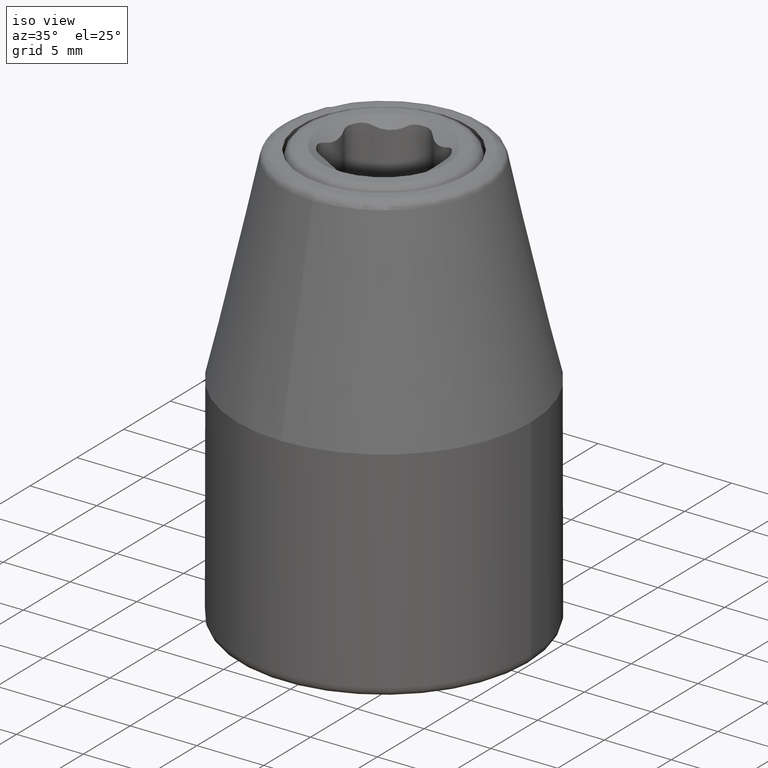
[diagram: clean part render]
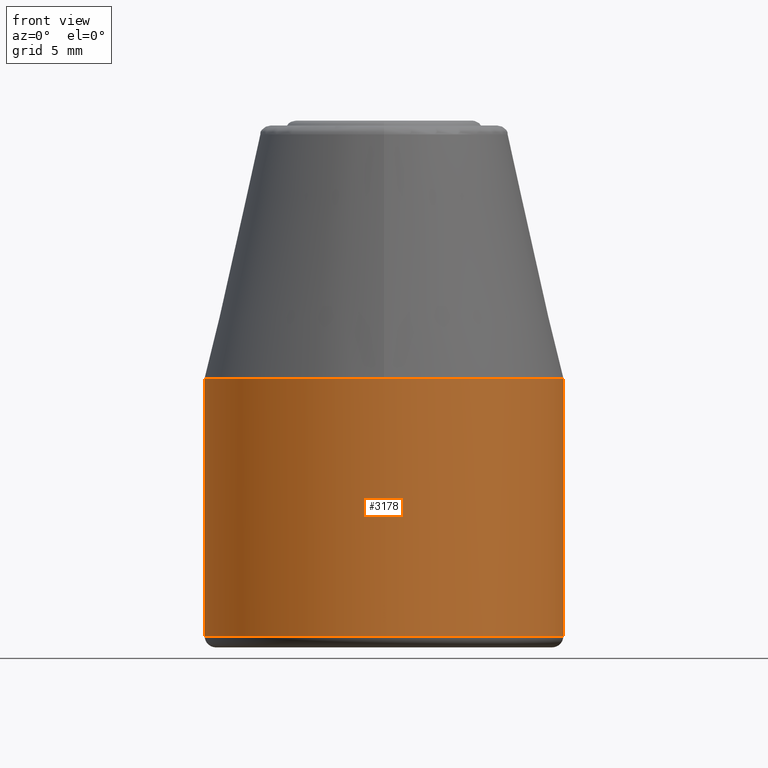
[diagram: tour spotlight — one face highlighted and labeled with its STEP entity id]
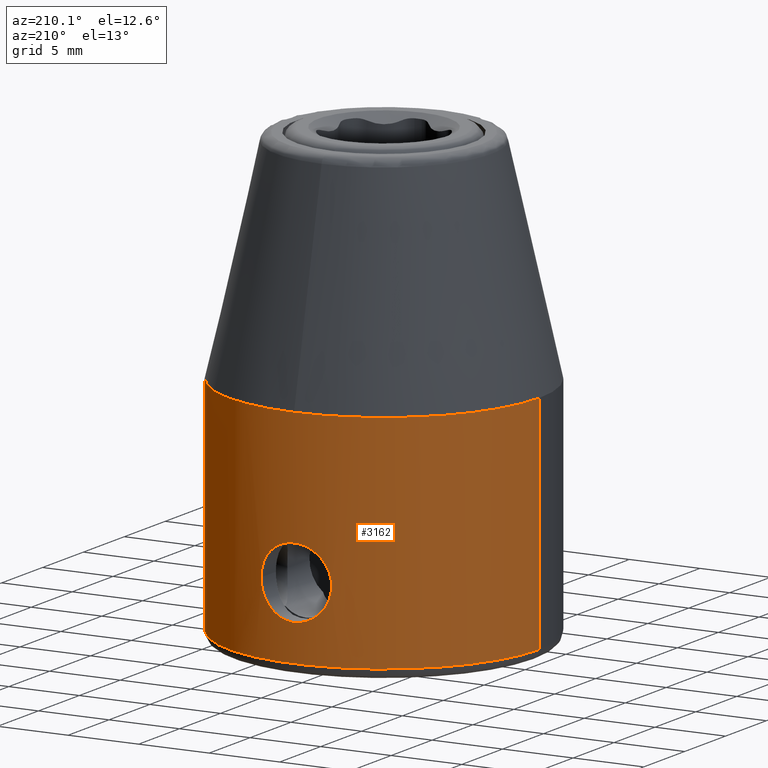
[diagram: tour spotlight — one face highlighted and labeled with its STEP entity id]
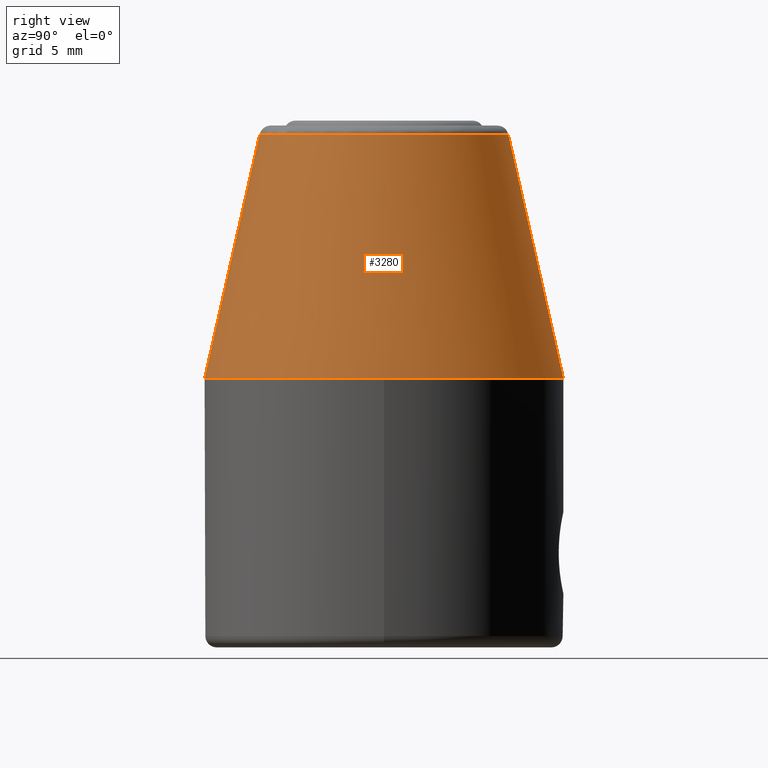
[diagram: tour spotlight — one face highlighted and labeled with its STEP entity id]
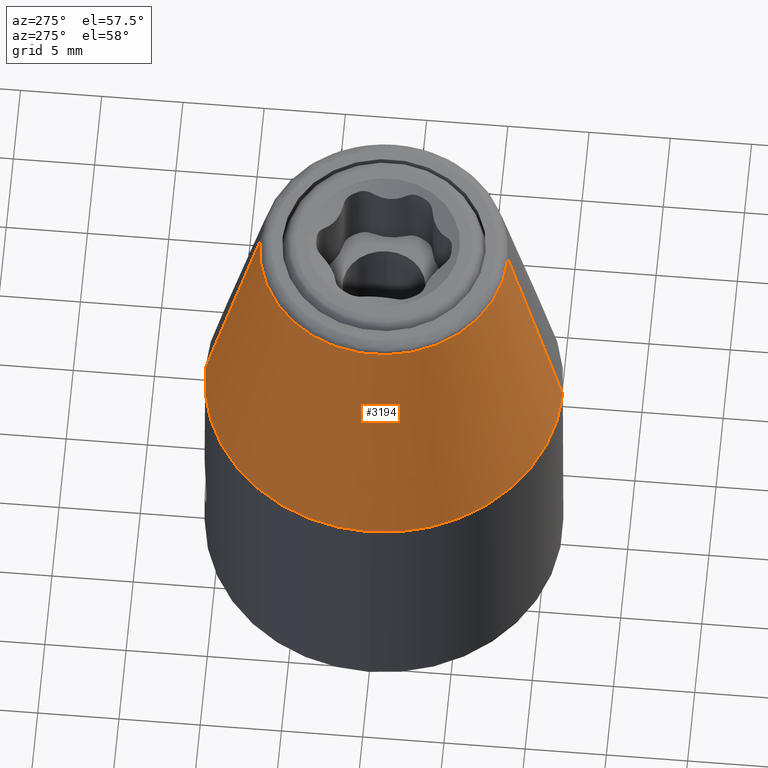
[diagram: tour spotlight — one face highlighted and labeled with its STEP entity id]
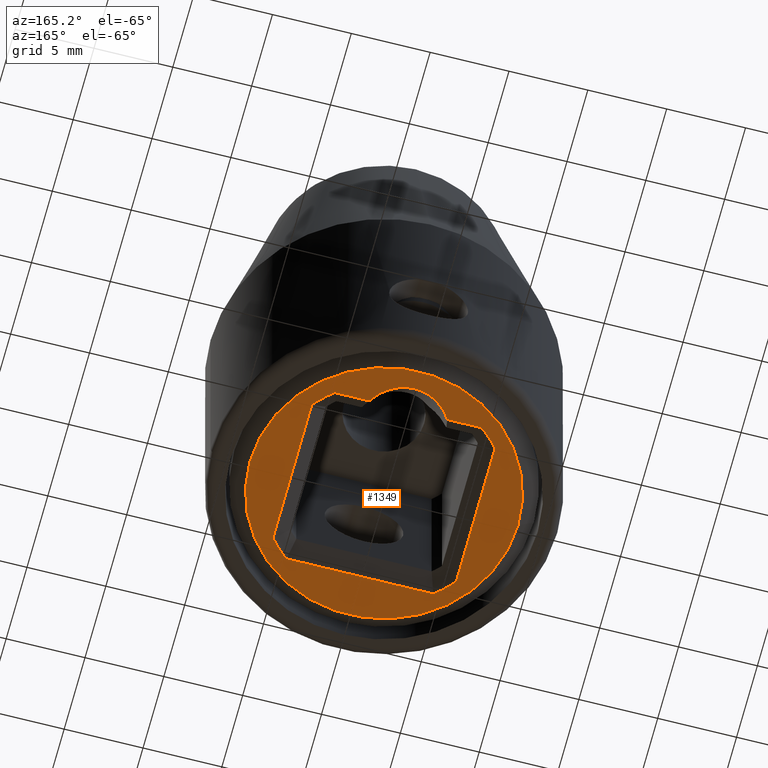
[diagram: tour spotlight — one face highlighted and labeled with its STEP entity id]
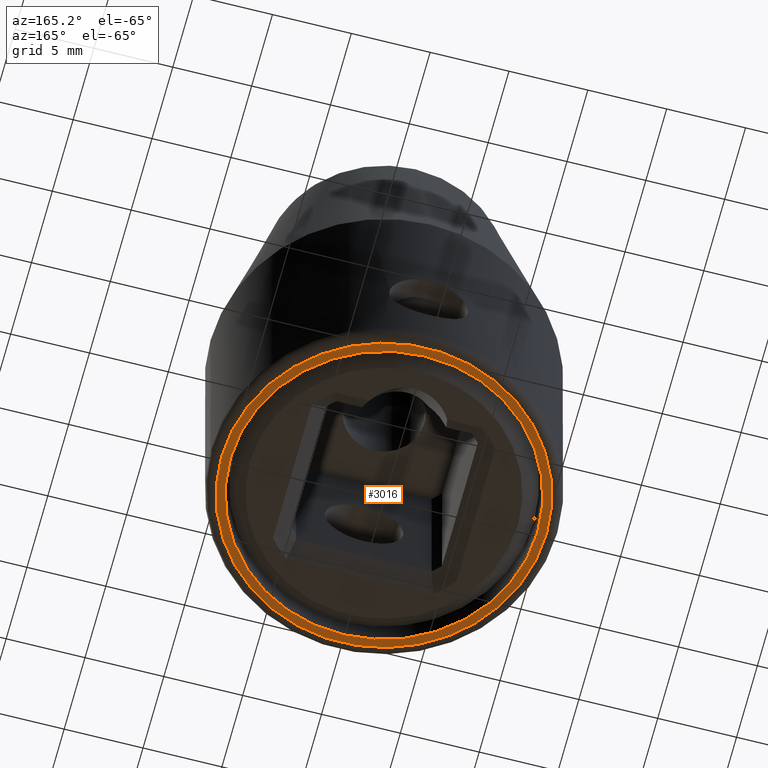
[diagram: tour spotlight — one face highlighted and labeled with its STEP entity id]
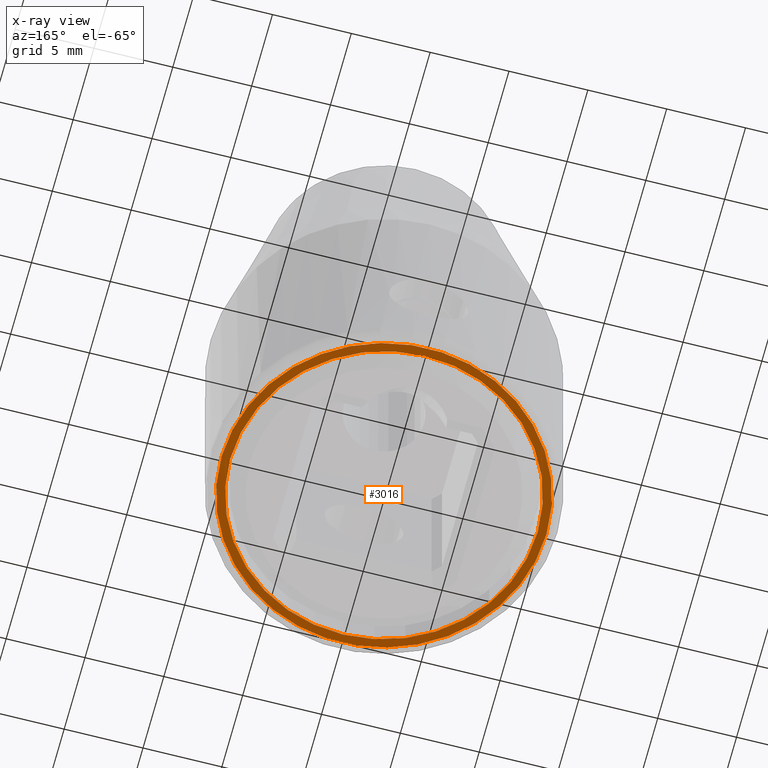
[diagram: x-ray of the same camera — body ghosted, this tour face saturated]
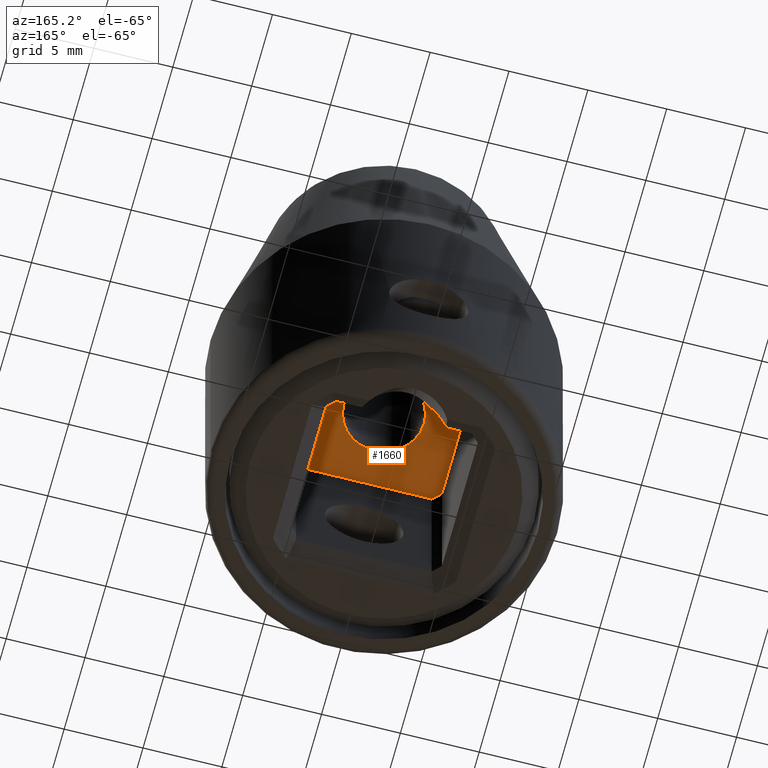
[diagram: tour spotlight — one face highlighted and labeled with its STEP entity id]
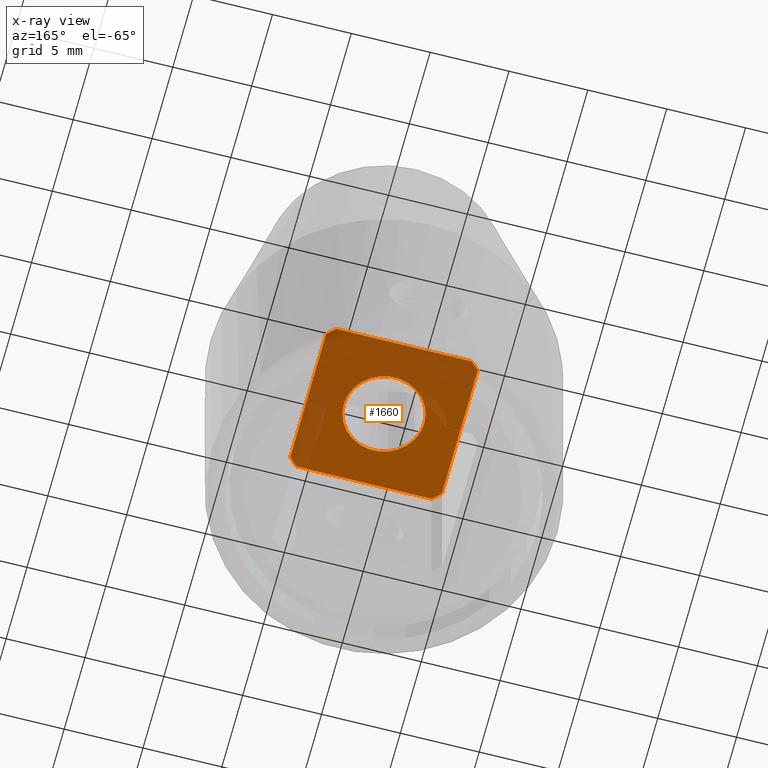
[diagram: x-ray of the same camera — body ghosted, this tour face saturated]
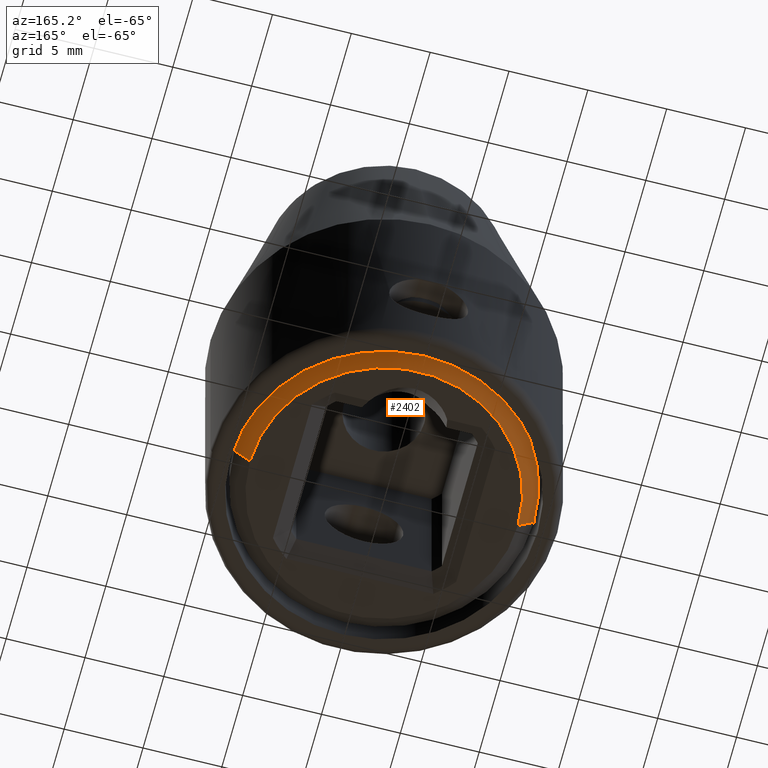
[diagram: tour spotlight — one face highlighted and labeled with its STEP entity id]
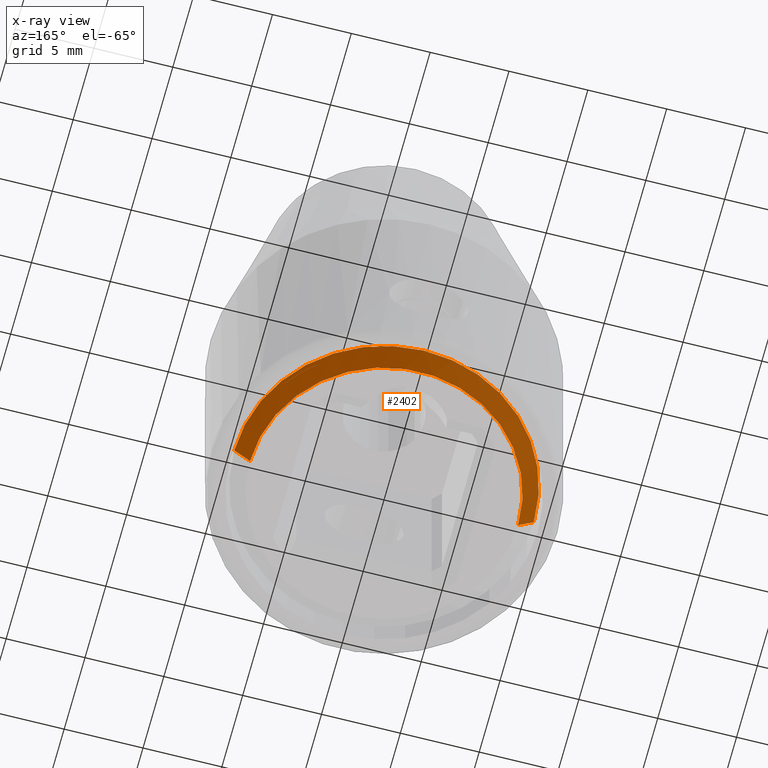
[diagram: x-ray of the same camera — body ghosted, this tour face saturated]
A machine part: a face-by-face anatomy tour. The part has 85 B-rep faces; the first image is the clean iso view, then the 8 largest visible faces are spotlighted one at a time (largest first), each with its STEP entity span.

Face 1 — front view, entity #3178. In plain terms, the highlighted cylindrical surface (partial cylindrical patch) has radius 11 mm, axis along (0, 0, 1).
Definition (entity closure, byte-faithful):
#2779=DIRECTION('',(0.E0,2.968833255423E-14,1.E0));
#2780=VECTOR('',#2779,1.58E1);
#2781=CARTESIAN_POINT('',(-1.1E1,-4.675040242979E-13,4.E-1));
#2782=LINE('',#2781,#2780);
#2802=CARTESIAN_POINT('',(0.E0,0.E0,1.62E1));
#2803=DIRECTION('',(0.E0,0.E0,1.E0));
#2804=DIRECTION('',(1.E0,0.E0,0.E0));
#2805=AXIS2_PLACEMENT_3D('',#2802,#2803,#2804);
#2810=CARTESIAN_POINT('',(0.E0,0.E0,1.62E1));
#2811=DIRECTION('',(0.E0,0.E0,1.E0));
#2812=DIRECTION('',(0.E0,1.E0,0.E0));
#2813=AXIS2_PLACEMENT_3D('',#2810,#2811,#2812);
#2818=CARTESIAN_POINT('',(0.E0,0.E0,4.E-1));
#2819=DIRECTION('',(0.E0,0.E0,-1.E0));
#2820=DIRECTION('',(-1.E0,0.E0,0.E0));
#2821=AXIS2_PLACEMENT_3D('',#2818,#2819,#2820);
#2826=DIRECTION('',(0.E0,-2.966940043145E-14,1.E0));
#2827=VECTOR('',#2826,1.58E1);
#2828=CARTESIAN_POINT('',(1.1E1,4.671915325568E-13,4.E-1));
#2829=LINE('',#2828,#2827);
#2967=CARTESIAN_POINT('',(-1.1E1,0.E0,4.E-1));
#2968=CARTESIAN_POINT('',(1.1E1,0.E0,4.E-1));
#2969=VERTEX_POINT('',#2967);
#2970=VERTEX_POINT('',#2968);
#2975=CARTESIAN_POINT('',(1.1E1,0.E0,1.62E1));
#2976=CARTESIAN_POINT('',(0.E0,1.1E1,1.62E1));
#2977=VERTEX_POINT('',#2975);
#2978=VERTEX_POINT('',#2976);
#2979=CARTESIAN_POINT('',(-1.1E1,0.E0,1.62E1));
#2980=VERTEX_POINT('',#2979);
#3163=CARTESIAN_POINT('',(0.E0,0.E0,-3.E-1));
#3164=DIRECTION('',(0.E0,0.E0,1.E0));
#3165=DIRECTION('',(1.E0,0.E0,0.E0));
#3166=AXIS2_PLACEMENT_3D('',#3163,#3164,#3165);
#3167=CYLINDRICAL_SURFACE('',#3166,1.1E1);
#3169=ORIENTED_EDGE('',*,*,#3168,.T.);
#3171=ORIENTED_EDGE('',*,*,#3170,.T.);
#3172=ORIENTED_EDGE('',*,*,#3150,.F.);
#3174=ORIENTED_EDGE('',*,*,#3173,.T.);
#3175=ORIENTED_EDGE('',*,*,#3146,.T.);
#3176=EDGE_LOOP('',(#3169,#3171,#3172,#3174,#3175));
#3177=FACE_OUTER_BOUND('',#3176,.F.);
#3178=ADVANCED_FACE('',(#3177),#3167,.T.);
#2806=CIRCLE('',#2805,1.1E1);
#2814=CIRCLE('',#2813,1.1E1);
#2822=CIRCLE('',#2821,1.1E1);
#3146=EDGE_CURVE('',#2970,#2977,#2829,.T.);
#3150=EDGE_CURVE('',#2969,#2980,#2782,.T.);
#3168=EDGE_CURVE('',#2977,#2978,#2806,.T.);
#3170=EDGE_CURVE('',#2978,#2980,#2814,.T.);
#3173=EDGE_CURVE('',#2969,#2970,#2822,.T.);

Face 2 — auxiliary view, entity #3162. In plain terms, the highlighted cylindrical surface (partial cylindrical patch) has radius 11 mm, axis along (0, 0, 1).
Definition (entity closure, byte-faithful):
#2725=CARTESIAN_POINT('',(2.5E0,-1.071214264281E1,5.5E0));
#2726=CARTESIAN_POINT('',(2.5E0,-1.071214264281E1,5.340394805165E0));
#2727=CARTESIAN_POINT('',(2.470942001866E0,-1.071900973391E1,5.023996983856E0));
#2728=CARTESIAN_POINT('',(2.324313615557E0,-1.075221441069E1,4.534053434573E0));
#2729=CARTESIAN_POINT('',(2.090201376670E0,-1.080076819921E1,4.100032376455E0));
#2730=CARTESIAN_POINT('',(1.780530971044E0,-1.085680709400E1,3.722702068675E0));
#2731=CARTESIAN_POINT('',(1.404945764429E0,-1.091241757742E1,3.413237681718E0));
#2732=CARTESIAN_POINT('',(9.704339778013E-1,-1.096054160446E1,
3.177235980934E0));
#2733=CARTESIAN_POINT('',(4.742923435666E-1,-1.099350478573E1,
3.028227124400E0));
#2734=CARTESIAN_POINT('',(-9.177716136540E-3,-1.100351173648E1,
2.984727240740E0));
#2735=CARTESIAN_POINT('',(-5.006144335564E-1,-1.099241816871E1,
3.032996351671E0));
#2736=CARTESIAN_POINT('',(-9.943062241594E-1,-1.095832789235E1,
3.187562986306E0));
#2737=CARTESIAN_POINT('',(-1.424305758002E0,-1.090983661191E1,
3.426730551638E0));
#2738=CARTESIAN_POINT('',(-1.792674460430E0,-1.085473804715E1,
3.735458732278E0));
#2739=CARTESIAN_POINT('',(-2.097512079038E0,-1.079931656469E1,
4.111448375745E0));
#2740=CARTESIAN_POINT('',(-2.327594059022E0,-1.075148304373E1,
4.542760048898E0));
#2741=CARTESIAN_POINT('',(-2.471585731413E0,-1.071885683490E1,
5.028908771470E0));
#2742=CARTESIAN_POINT('',(-2.5E0,-1.071214264281E1,5.342142468506E0));
#2743=CARTESIAN_POINT('',(-2.5E0,-1.071214264281E1,5.5E0));
#2748=CARTESIAN_POINT('',(-2.5E0,-1.071214264281E1,5.5E0));
#2749=CARTESIAN_POINT('',(-2.5E0,-1.071214264281E1,5.659605194835E0));
#2750=CARTESIAN_POINT('',(-2.470942001866E0,-1.071900973391E1,
5.976003016144E0));
#2751=CARTESIAN_POINT('',(-2.324313615557E0,-1.075221441069E1,
6.465946565427E0));
#2752=CARTESIAN_POINT('',(-2.090201376670E0,-1.080076819921E1,
6.899967623545E0));
#2753=CARTESIAN_POINT('',(-1.780530971044E0,-1.085680709400E1,
7.277297931325E0));
#2754=CARTESIAN_POINT('',(-1.404945764429E0,-1.091241757742E1,
7.586762318282E0));
#2755=CARTESIAN_POINT('',(-9.704339778013E-1,-1.096054160446E1,
7.822764019066E0));
#2756=CARTESIAN_POINT('',(-4.742923435666E-1,-1.099350478573E1,
7.971772875600E0));
#2757=CARTESIAN_POINT('',(9.177716136556E-3,-1.100351173648E1,
8.015272759260E0));
#2758=CARTESIAN_POINT('',(5.006144335563E-1,-1.099241816871E1,
7.967003648329E0));
#2759=CARTESIAN_POINT('',(9.943062241594E-1,-1.095832789235E1,
7.812437013694E0));
#2760=CARTESIAN_POINT('',(1.424305758002E0,-1.090983661191E1,7.573269448362E0));
#2761=CARTESIAN_POINT('',(1.792674460430E0,-1.085473804715E1,7.264541267722E0));
#2762=CARTESIAN_POINT('',(2.097512079038E0,-1.079931656469E1,6.888551624255E0));
#2763=CARTESIAN_POINT('',(2.327594059022E0,-1.075148304373E1,6.457239951102E0));
#2764=CARTESIAN_POINT('',(2.471585731413E0,-1.071885683490E1,5.971091228530E0));
#2765=CARTESIAN_POINT('',(2.5E0,-1.071214264281E1,5.657857531494E0));
#2766=CARTESIAN_POINT('',(2.5E0,-1.071214264281E1,5.5E0));
#2771=CARTESIAN_POINT('',(0.E0,0.E0,4.E-1));
#2772=DIRECTION('',(0.E0,0.E0,-1.E0));
#2773=DIRECTION('',(1.E0,0.E0,0.E0));
#2774=AXIS2_PLACEMENT_3D('',#2771,#2772,#2773);
#2779=DIRECTION('',(0.E0,2.968833255423E-14,1.E0));
#2780=VECTOR('',#2779,1.58E1);
#2781=CARTESIAN_POINT('',(-1.1E1,-4.675040242979E-13,4.E-1));
#2782=LINE('',#2781,#2780);
#2786=CARTESIAN_POINT('',(0.E0,0.E0,1.62E1));
#2787=DIRECTION('',(0.E0,0.E0,1.E0));
#2788=DIRECTION('',(-1.E0,0.E0,0.E0));
#2789=AXIS2_PLACEMENT_3D('',#2786,#2787,#2788);
#2794=CARTESIAN_POINT('',(0.E0,0.E0,1.62E1));
#2795=DIRECTION('',(0.E0,0.E0,1.E0));
#2796=DIRECTION('',(0.E0,-1.E0,0.E0));
#2797=AXIS2_PLACEMENT_3D('',#2794,#2795,#2796);
#2826=DIRECTION('',(0.E0,-2.966940043145E-14,1.E0));
#2827=VECTOR('',#2826,1.58E1);
#2828=CARTESIAN_POINT('',(1.1E1,4.671915325568E-13,4.E-1));
#2829=LINE('',#2828,#2827);
#2951=CARTESIAN_POINT('',(2.5E0,-1.071214264281E1,5.5E0));
#2952=VERTEX_POINT('',#2951);
#2953=CARTESIAN_POINT('',(-2.5E0,-1.071214264281E1,5.5E0));
#2954=VERTEX_POINT('',#2953);
#2967=CARTESIAN_POINT('',(-1.1E1,0.E0,4.E-1));
#2968=CARTESIAN_POINT('',(1.1E1,0.E0,4.E-1));
#2969=VERTEX_POINT('',#2967);
#2970=VERTEX_POINT('',#2968);
#2975=CARTESIAN_POINT('',(1.1E1,0.E0,1.62E1));
#2977=VERTEX_POINT('',#2975);
#2979=CARTESIAN_POINT('',(-1.1E1,0.E0,1.62E1));
#2980=VERTEX_POINT('',#2979);
#2981=CARTESIAN_POINT('',(0.E0,-1.1E1,1.62E1));
#2982=VERTEX_POINT('',#2981);
#3141=CARTESIAN_POINT('',(0.E0,0.E0,-3.E-1));
#3142=DIRECTION('',(0.E0,0.E0,1.E0));
#3143=DIRECTION('',(1.E0,0.E0,0.E0));
#3144=AXIS2_PLACEMENT_3D('',#3141,#3142,#3143);
#3145=CYLINDRICAL_SURFACE('',#3144,1.1E1);
#3147=ORIENTED_EDGE('',*,*,#3146,.F.);
#3149=ORIENTED_EDGE('',*,*,#3148,.T.);
#3151=ORIENTED_EDGE('',*,*,#3150,.T.);
#3153=ORIENTED_EDGE('',*,*,#3152,.T.);
#3155=ORIENTED_EDGE('',*,*,#3154,.T.);
#3156=EDGE_LOOP('',(#3147,#3149,#3151,#3153,#3155));
#3157=FACE_OUTER_BOUND('',#3156,.F.);
#3158=ORIENTED_EDGE('',*,*,#3117,.F.);
#3159=ORIENTED_EDGE('',*,*,#3135,.F.);
#3160=EDGE_LOOP('',(#3158,#3159));
#3161=FACE_BOUND('',#3160,.F.);
#3162=ADVANCED_FACE('',(#3157,#3161),#3145,.T.);
#2744=B_SPLINE_CURVE_WITH_KNOTS('',3,(#2725,#2726,#2727,#2728,#2729,#2730,#2731,
#2732,#2733,#2734,#2735,#2736,#2737,#2738,#2739,#2740,#2741,#2742,#2743),
.UNSPECIFIED.,.F.,.F.,(4,1,1,1,1,1,1,1,1,1,1,1,1,1,1,1,4),(0.E0,6.25E-2,1.25E-1,
1.875E-1,2.5E-1,3.125E-1,3.75E-1,4.375E-1,5.E-1,5.625E-1,6.25E-1,6.875E-1,
7.5E-1,8.125E-1,8.75E-1,9.375E-1,1.E0),.UNSPECIFIED.);
#2767=B_SPLINE_CURVE_WITH_KNOTS('',3,(#2748,#2749,#2750,#2751,#2752,#2753,#2754,
#2755,#2756,#2757,#2758,#2759,#2760,#2761,#2762,#2763,#2764,#2765,#2766),
.UNSPECIFIED.,.F.,.F.,(4,1,1,1,1,1,1,1,1,1,1,1,1,1,1,1,4),(0.E0,6.25E-2,1.25E-1,
1.875E-1,2.5E-1,3.125E-1,3.75E-1,4.375E-1,5.E-1,5.625E-1,6.25E-1,6.875E-1,
7.5E-1,8.125E-1,8.75E-1,9.375E-1,1.E0),.UNSPECIFIED.);
#2775=CIRCLE('',#2774,1.1E1);
#2790=CIRCLE('',#2789,1.1E1);
#2798=CIRCLE('',#2797,1.1E1);
#3117=EDGE_CURVE('',#2952,#2954,#2744,.T.);
#3135=EDGE_CURVE('',#2954,#2952,#2767,.T.);
#3146=EDGE_CURVE('',#2970,#2977,#2829,.T.);
#3148=EDGE_CURVE('',#2970,#2969,#2775,.T.);
#3150=EDGE_CURVE('',#2969,#2980,#2782,.T.);
#3152=EDGE_CURVE('',#2980,#2982,#2790,.T.);
#3154=EDGE_CURVE('',#2982,#2977,#2798,.T.);

Face 3 — right view, entity #3280. In plain terms, the highlighted conical surface has half-angle 12.724 deg.
Definition (entity closure, byte-faithful):
#2786=CARTESIAN_POINT('',(0.E0,0.E0,1.62E1));
#2787=DIRECTION('',(0.E0,0.E0,1.E0));
#2788=DIRECTION('',(-1.E0,0.E0,0.E0));
#2789=AXIS2_PLACEMENT_3D('',#2786,#2787,#2788);
#2810=CARTESIAN_POINT('',(0.E0,0.E0,1.62E1));
#2811=DIRECTION('',(0.E0,0.E0,1.E0));
#2812=DIRECTION('',(0.E0,1.E0,0.E0));
#2813=AXIS2_PLACEMENT_3D('',#2810,#2811,#2812);
#2903=CARTESIAN_POINT('',(0.E0,0.E0,3.115418261E1));
#2904=DIRECTION('',(0.E0,0.E0,1.E0));
#2905=DIRECTION('',(0.E0,1.E0,0.E0));
#2906=AXIS2_PLACEMENT_3D('',#2903,#2904,#2905);
#2911=DIRECTION('',(-2.478492265371E-14,2.202608714346E-1,9.754410020677E-1));
#2912=VECTOR('',#2911,1.533068896869E1);
#2913=CARTESIAN_POINT('',(0.E0,-1.1E1,1.62E1));
#2914=LINE('',#2913,#2912);
#2918=DIRECTION('',(2.485306348568E-14,-2.202608714346E-1,9.754410020677E-1));
#2919=VECTOR('',#2918,1.533068896869E1);
#2920=CARTESIAN_POINT('',(0.E0,1.1E1,1.62E1));
#2921=LINE('',#2920,#2919);
#2976=CARTESIAN_POINT('',(0.E0,1.1E1,1.62E1));
#2978=VERTEX_POINT('',#2976);
#2979=CARTESIAN_POINT('',(-1.1E1,0.E0,1.62E1));
#2980=VERTEX_POINT('',#2979);
#2981=CARTESIAN_POINT('',(0.E0,-1.1E1,1.62E1));
#2982=VERTEX_POINT('',#2981);
#2995=CARTESIAN_POINT('',(0.E0,-7.623249088064E0,3.115418261E1));
#2996=CARTESIAN_POINT('',(0.E0,7.623249088064E0,3.115418261E1));
#2997=VERTEX_POINT('',#2995);
#2998=VERTEX_POINT('',#2996);
#3268=CARTESIAN_POINT('',(0.E0,0.E0,2.367709130500E1));
#3269=DIRECTION('',(0.E0,0.E0,-1.E0));
#3270=DIRECTION('',(0.E0,-1.E0,0.E0));
#3271=AXIS2_PLACEMENT_3D('',#3268,#3269,#3270);
#3272=CONICAL_SURFACE('',#3271,9.311624544032E0,1.272435568542E1);
#3273=ORIENTED_EDGE('',*,*,#3262,.T.);
#3274=ORIENTED_EDGE('',*,*,#3190,.F.);
#3275=ORIENTED_EDGE('',*,*,#3152,.F.);
#3276=ORIENTED_EDGE('',*,*,#3170,.F.);
#3277=ORIENTED_EDGE('',*,*,#3186,.T.);
#3278=EDGE_LOOP('',(#3273,#3274,#3275,#3276,#3277));
#3279=FACE_OUTER_BOUND('',#3278,.F.);
#3280=ADVANCED_FACE('',(#3279),#3272,.T.);
#2790=CIRCLE('',#2789,1.1E1);
#2814=CIRCLE('',#2813,1.1E1);
#2907=CIRCLE('',#2906,7.623249088064E0);
#3152=EDGE_CURVE('',#2980,#2982,#2790,.T.);
#3170=EDGE_CURVE('',#2978,#2980,#2814,.T.);
#3186=EDGE_CURVE('',#2978,#2998,#2921,.T.);
#3190=EDGE_CURVE('',#2982,#2997,#2914,.T.);
#3262=EDGE_CURVE('',#2998,#2997,#2907,.T.);

Face 4 — auxiliary view, entity #3194. In plain terms, the highlighted conical surface has half-angle 12.724 deg.
Definition (entity closure, byte-faithful):
#2794=CARTESIAN_POINT('',(0.E0,0.E0,1.62E1));
#2795=DIRECTION('',(0.E0,0.E0,1.E0));
#2796=DIRECTION('',(0.E0,-1.E0,0.E0));
#2797=AXIS2_PLACEMENT_3D('',#2794,#2795,#2796);
#2802=CARTESIAN_POINT('',(0.E0,0.E0,1.62E1));
#2803=DIRECTION('',(0.E0,0.E0,1.E0));
#2804=DIRECTION('',(1.E0,0.E0,0.E0));
#2805=AXIS2_PLACEMENT_3D('',#2802,#2803,#2804);
#2833=CARTESIAN_POINT('',(0.E0,0.E0,3.115418261E1));
#2834=DIRECTION('',(0.E0,0.E0,1.E0));
#2835=DIRECTION('',(0.E0,-1.E0,0.E0));
#2836=AXIS2_PLACEMENT_3D('',#2833,#2834,#2835);
#2911=DIRECTION('',(-2.478492265371E-14,2.202608714346E-1,9.754410020677E-1));
#2912=VECTOR('',#2911,1.533068896869E1);
#2913=CARTESIAN_POINT('',(0.E0,-1.1E1,1.62E1));
#2914=LINE('',#2913,#2912);
#2918=DIRECTION('',(2.485306348568E-14,-2.202608714346E-1,9.754410020677E-1));
#2919=VECTOR('',#2918,1.533068896869E1);
#2920=CARTESIAN_POINT('',(0.E0,1.1E1,1.62E1));
#2921=LINE('',#2920,#2919);
#2975=CARTESIAN_POINT('',(1.1E1,0.E0,1.62E1));
#2976=CARTESIAN_POINT('',(0.E0,1.1E1,1.62E1));
#2977=VERTEX_POINT('',#2975);
#2978=VERTEX_POINT('',#2976);
#2981=CARTESIAN_POINT('',(0.E0,-1.1E1,1.62E1));
#2982=VERTEX_POINT('',#2981);
#2995=CARTESIAN_POINT('',(0.E0,-7.623249088064E0,3.115418261E1));
#2996=CARTESIAN_POINT('',(0.E0,7.623249088064E0,3.115418261E1));
#2997=VERTEX_POINT('',#2995);
#2998=VERTEX_POINT('',#2996);
#3179=CARTESIAN_POINT('',(0.E0,0.E0,2.367709130500E1));
#3180=DIRECTION('',(0.E0,0.E0,-1.E0));
#3181=DIRECTION('',(0.E0,-1.E0,0.E0));
#3182=AXIS2_PLACEMENT_3D('',#3179,#3180,#3181);
#3183=CONICAL_SURFACE('',#3182,9.311624544032E0,1.272435568542E1);
#3185=ORIENTED_EDGE('',*,*,#3184,.T.);
#3187=ORIENTED_EDGE('',*,*,#3186,.F.);
#3188=ORIENTED_EDGE('',*,*,#3168,.F.);
#3189=ORIENTED_EDGE('',*,*,#3154,.F.);
#3191=ORIENTED_EDGE('',*,*,#3190,.T.);
#3192=EDGE_LOOP('',(#3185,#3187,#3188,#3189,#3191));
#3193=FACE_OUTER_BOUND('',#3192,.F.);
#3194=ADVANCED_FACE('',(#3193),#3183,.T.);
#2798=CIRCLE('',#2797,1.1E1);
#2806=CIRCLE('',#2805,1.1E1);
#2837=CIRCLE('',#2836,7.623249088064E0);
#3154=EDGE_CURVE('',#2982,#2977,#2798,.T.);
#3168=EDGE_CURVE('',#2977,#2978,#2806,.T.);
#3184=EDGE_CURVE('',#2997,#2998,#2837,.T.);
#3186=EDGE_CURVE('',#2978,#2998,#2921,.T.);
#3190=EDGE_CURVE('',#2982,#2997,#2914,.T.);

Face 5 — auxiliary view, entity #1349. In plain terms, the highlighted planar face has unit normal (0, 0, 1).
Definition (entity closure, byte-faithful):
#43=DIRECTION('',(-1.E0,0.E0,0.E0));
#44=VECTOR('',#43,2.189007490120E0);
#45=CARTESIAN_POINT('',(4.660187093884E0,5.8125E0,0.E0));
#46=LINE('',#45,#44);
#47=CARTESIAN_POINT('',(1.509903313490E-14,1.287858708565E-14,0.E0));
#48=DIRECTION('',(0.E0,0.E0,1.E0));
#49=DIRECTION('',(7.802013422819E-1,6.255284689777E-1,0.E0));
#50=AXIS2_PLACEMENT_3D('',#47,#48,#49);
#52=DIRECTION('',(0.E0,1.E0,0.E0));
#53=VECTOR('',#52,9.320374187767E0);
#54=CARTESIAN_POINT('',(5.8125E0,-4.660187093884E0,0.E0));
#55=LINE('',#54,#53);
#56=CARTESIAN_POINT('',(1.132427485118E-13,-1.083577672034E-13,0.E0));
#57=DIRECTION('',(0.E0,0.E0,1.E0));
#58=DIRECTION('',(6.255284689777E-1,-7.802013422819E-1,0.E0));
#59=AXIS2_PLACEMENT_3D('',#56,#57,#58);
#61=DIRECTION('',(1.E0,0.E0,0.E0));
#62=VECTOR('',#61,9.320374187767E0);
#63=CARTESIAN_POINT('',(-4.660187093884E0,-5.8125E0,0.E0));
#64=LINE('',#63,#62);
#65=CARTESIAN_POINT('',(-9.237055564881E-14,-1.056932319443E-13,0.E0));
#66=DIRECTION('',(0.E0,0.E0,1.E0));
#67=DIRECTION('',(-7.802013422819E-1,-6.255284689777E-1,0.E0));
#68=AXIS2_PLACEMENT_3D('',#65,#66,#67);
#70=DIRECTION('',(0.E0,-1.E0,0.E0));
#71=VECTOR('',#70,9.320374187767E0);
#72=CARTESIAN_POINT('',(-5.8125E0,4.660187093884E0,0.E0));
#73=LINE('',#72,#71);
#74=CARTESIAN_POINT('',(-1.199040866595E-14,0.E0,0.E0));
#75=DIRECTION('',(0.E0,0.E0,1.E0));
#76=DIRECTION('',(-6.255284689777E-1,7.802013422819E-1,0.E0));
#77=AXIS2_PLACEMENT_3D('',#74,#75,#76);
#79=DIRECTION('',(-1.E0,0.E0,0.E0));
#80=VECTOR('',#79,2.189007490120E0);
#81=CARTESIAN_POINT('',(-2.471179603764E0,5.8125E0,0.E0));
#82=LINE('',#81,#80);
#83=CARTESIAN_POINT('',(0.E0,0.E0,0.E0));
#84=DIRECTION('',(0.E0,0.E0,-1.E0));
#85=DIRECTION('',(1.E0,0.E0,0.E0));
#86=AXIS2_PLACEMENT_3D('',#83,#84,#85);
#88=CARTESIAN_POINT('',(0.E0,0.E0,0.E0));
#89=DIRECTION('',(0.E0,0.E0,-1.E0));
#90=DIRECTION('',(-1.E0,0.E0,0.E0));
#91=AXIS2_PLACEMENT_3D('',#88,#89,#90);
#121=CARTESIAN_POINT('',(2.471179603764E0,5.8125E0,0.E0));
#122=CARTESIAN_POINT('',(2.368213786941E0,5.985231746299E0,0.E0));
#123=CARTESIAN_POINT('',(2.162282153294E0,6.267302570352E0,0.E0));
#124=CARTESIAN_POINT('',(1.750418886E0,6.690287844607E0,0.E0));
#125=CARTESIAN_POINT('',(1.235589801882E0,7.036259772323E0,0.E0));
#126=CARTESIAN_POINT('',(6.177949009410E-1,7.264143092871E0,0.E0));
#127=CARTESIAN_POINT('',(0.E0,7.336678453564E0,0.E0));
#128=CARTESIAN_POINT('',(-6.177949009410E-1,7.264143092871E0,0.E0));
#129=CARTESIAN_POINT('',(-1.235589801882E0,7.036259772323E0,0.E0));
#130=CARTESIAN_POINT('',(-1.750418886E0,6.690287844607E0,0.E0));
#131=CARTESIAN_POINT('',(-2.162282153294E0,6.267302570352E0,0.E0));
#132=CARTESIAN_POINT('',(-2.368213786941E0,5.985231746299E0,0.E0));
#133=CARTESIAN_POINT('',(-2.471179603764E0,5.8125E0,0.E0));
#453=CARTESIAN_POINT('',(2.471179603764E0,5.8125E0,0.E0));
#461=CARTESIAN_POINT('',(-2.471179603764E0,5.8125E0,0.E0));
#1135=CARTESIAN_POINT('',(5.8125E0,4.660187093884E0,0.E0));
#1136=CARTESIAN_POINT('',(4.660187093884E0,5.8125E0,0.E0));
#1137=VERTEX_POINT('',#1135);
#1138=VERTEX_POINT('',#1136);
#1139=CARTESIAN_POINT('',(5.8125E0,-4.660187093884E0,0.E0));
#1140=VERTEX_POINT('',#1139);
#1143=CARTESIAN_POINT('',(4.660187093884E0,-5.8125E0,0.E0));
#1144=VERTEX_POINT('',#1143);
#1147=CARTESIAN_POINT('',(-4.660187093884E0,-5.8125E0,0.E0));
#1148=VERTEX_POINT('',#1147);
#1151=CARTESIAN_POINT('',(-5.8125E0,-4.660187093884E0,0.E0));
#1152=VERTEX_POINT('',#1151);
#1155=CARTESIAN_POINT('',(-5.8125E0,4.660187093884E0,0.E0));
#1156=VERTEX_POINT('',#1155);
#1159=CARTESIAN_POINT('',(-4.660187093884E0,5.8125E0,0.E0));
#1160=VERTEX_POINT('',#1159);
#1163=VERTEX_POINT('',#453);
#1166=VERTEX_POINT('',#461);
#1167=CARTESIAN_POINT('',(8.5E0,0.E0,0.E0));
#1168=CARTESIAN_POINT('',(-8.5E0,0.E0,0.E0));
#1169=VERTEX_POINT('',#1167);
#1170=VERTEX_POINT('',#1168);
#1316=CARTESIAN_POINT('',(0.E0,0.E0,0.E0));
#1317=DIRECTION('',(0.E0,0.E0,1.E0));
#1318=DIRECTION('',(1.E0,0.E0,0.E0));
#1319=AXIS2_PLACEMENT_3D('',#1316,#1317,#1318);
#1320=PLANE('',#1319);
#1322=ORIENTED_EDGE('',*,*,#1321,.F.);
#1324=ORIENTED_EDGE('',*,*,#1323,.F.);
#1325=EDGE_LOOP('',(#1322,#1324));
#1326=FACE_OUTER_BOUND('',#1325,.F.);
#1328=ORIENTED_EDGE('',*,*,#1327,.F.);
#1330=ORIENTED_EDGE('',*,*,#1329,.F.);
#1332=ORIENTED_EDGE('',*,*,#1331,.F.);
#1334=ORIENTED_EDGE('',*,*,#1333,.F.);
#1336=ORIENTED_EDGE('',*,*,#1335,.F.);
#1338=ORIENTED_EDGE('',*,*,#1337,.F.);
#1340=ORIENTED_EDGE('',*,*,#1339,.F.);
#1342=ORIENTED_EDGE('',*,*,#1341,.F.);
#1344=ORIENTED_EDGE('',*,*,#1343,.F.);
#1346=ORIENTED_EDGE('',*,*,#1345,.F.);
#1347=EDGE_LOOP('',(#1328,#1330,#1332,#1334,#1336,#1338,#1340,#1342,#1344,
#1346));
#1348=FACE_BOUND('',#1347,.F.);
#1349=ADVANCED_FACE('',(#1326,#1348),#1320,.F.);
#51=CIRCLE('',#50,7.45E0);
#60=CIRCLE('',#59,7.45E0);
#69=CIRCLE('',#68,7.45E0);
#78=CIRCLE('',#77,7.45E0);
#87=CIRCLE('',#86,8.5E0);
#92=CIRCLE('',#91,8.5E0);
#134=B_SPLINE_CURVE_WITH_KNOTS('',3,(#121,#122,#123,#124,#125,#126,#127,#128,
#129,#130,#131,#132,#133),.UNSPECIFIED.,.F.,.F.,(4,1,1,1,1,1,1,1,1,1,4),(0.E0,
6.25E-2,1.25E-1,2.5E-1,3.75E-1,5.E-1,6.25E-1,7.5E-1,8.75E-1,9.375E-1,1.E0),
.UNSPECIFIED.);
#1321=EDGE_CURVE('',#1169,#1170,#87,.T.);
#1323=EDGE_CURVE('',#1170,#1169,#92,.T.);
#1327=EDGE_CURVE('',#1163,#1166,#134,.T.);
#1329=EDGE_CURVE('',#1138,#1163,#46,.T.);
#1331=EDGE_CURVE('',#1137,#1138,#51,.T.);
#1333=EDGE_CURVE('',#1140,#1137,#55,.T.);
#1335=EDGE_CURVE('',#1144,#1140,#60,.T.);
#1337=EDGE_CURVE('',#1148,#1144,#64,.T.);
#1339=EDGE_CURVE('',#1152,#1148,#69,.T.);
#1341=EDGE_CURVE('',#1156,#1152,#73,.T.);
#1343=EDGE_CURVE('',#1160,#1156,#78,.T.);
#1345=EDGE_CURVE('',#1166,#1160,#82,.T.);

Face 6 — auxiliary view, entity #3016. An x-ray twin of the same camera follows (body ghosted, this face saturated) — the face is partly hidden behind the body. In plain terms, the highlighted planar face has unit normal (0, 0, 1).
Definition (entity closure, byte-faithful):
#2484=CARTESIAN_POINT('',(0.E0,0.E0,-3.E-1));
#2485=DIRECTION('',(0.E0,0.E0,1.E0));
#2486=DIRECTION('',(1.E0,0.E0,0.E0));
#2487=AXIS2_PLACEMENT_3D('',#2484,#2485,#2486);
#2493=CARTESIAN_POINT('',(0.E0,0.E0,-3.E-1));
#2494=DIRECTION('',(0.E0,0.E0,1.E0));
#2495=DIRECTION('',(-1.E0,0.E0,0.E0));
#2496=AXIS2_PLACEMENT_3D('',#2493,#2494,#2495);
#2501=CARTESIAN_POINT('',(0.E0,0.E0,-3.E-1));
#2502=DIRECTION('',(0.E0,0.E0,-1.E0));
#2503=DIRECTION('',(-1.E0,0.E0,0.E0));
#2504=AXIS2_PLACEMENT_3D('',#2501,#2502,#2503);
#2509=CARTESIAN_POINT('',(0.E0,0.E0,-3.E-1));
#2510=DIRECTION('',(0.E0,0.E0,-1.E0));
#2511=DIRECTION('',(1.E0,0.E0,0.E0));
#2512=AXIS2_PLACEMENT_3D('',#2509,#2510,#2511);
#2941=CARTESIAN_POINT('',(9.75E0,0.E0,-3.E-1));
#2942=CARTESIAN_POINT('',(-9.75E0,0.E0,-3.E-1));
#2943=VERTEX_POINT('',#2941);
#2944=VERTEX_POINT('',#2942);
#2963=CARTESIAN_POINT('',(-1.03E1,0.E0,-3.E-1));
#2964=CARTESIAN_POINT('',(1.03E1,0.E0,-3.E-1));
#2965=VERTEX_POINT('',#2963);
#2966=VERTEX_POINT('',#2964);
#2999=CARTESIAN_POINT('',(0.E0,0.E0,-3.E-1));
#3000=DIRECTION('',(0.E0,0.E0,1.E0));
#3001=DIRECTION('',(1.E0,0.E0,0.E0));
#3002=AXIS2_PLACEMENT_3D('',#2999,#3000,#3001);
#3003=PLANE('',#3002);
#3005=ORIENTED_EDGE('',*,*,#3004,.F.);
#3007=ORIENTED_EDGE('',*,*,#3006,.F.);
#3008=EDGE_LOOP('',(#3005,#3007));
#3009=FACE_OUTER_BOUND('',#3008,.F.);
#3011=ORIENTED_EDGE('',*,*,#3010,.F.);
#3013=ORIENTED_EDGE('',*,*,#3012,.F.);
#3014=EDGE_LOOP('',(#3011,#3013));
#3015=FACE_BOUND('',#3014,.F.);
#3016=ADVANCED_FACE('',(#3009,#3015),#3003,.F.);
#2488=CIRCLE('',#2487,9.75E0);
#2497=CIRCLE('',#2496,9.75E0);
#2505=CIRCLE('',#2504,1.03E1);
#2513=CIRCLE('',#2512,1.03E1);
#3004=EDGE_CURVE('',#2965,#2966,#2505,.T.);
#3006=EDGE_CURVE('',#2966,#2965,#2513,.T.);
#3010=EDGE_CURVE('',#2943,#2944,#2488,.T.);
#3012=EDGE_CURVE('',#2944,#2943,#2497,.T.);

Face 7 — auxiliary view, entity #1660. An x-ray twin of the same camera follows (body ghosted, this face saturated) — the face is partly hidden behind the body. In plain terms, the highlighted planar face has unit normal (0, 0, -1).
Definition (entity closure, byte-faithful):
#484=CARTESIAN_POINT('',(0.E0,0.E0,1.15E1));
#485=DIRECTION('',(0.E0,0.E0,-1.E0));
#486=DIRECTION('',(6.658069767979E-1,7.461240310078E-1,0.E0));
#487=AXIS2_PLACEMENT_3D('',#484,#485,#486);
#489=DIRECTION('',(1.E0,0.E0,0.E0));
#490=VECTOR('',#489,8.588910000693E0);
#491=CARTESIAN_POINT('',(-4.294455000346E0,4.8125E0,1.15E1));
#492=LINE('',#491,#490);
#493=CARTESIAN_POINT('',(0.E0,0.E0,1.15E1));
#494=DIRECTION('',(0.E0,0.E0,-1.E0));
#495=DIRECTION('',(-7.461240310078E-1,6.658069767979E-1,0.E0));
#496=AXIS2_PLACEMENT_3D('',#493,#494,#495);
#498=DIRECTION('',(0.E0,1.E0,0.E0));
#499=VECTOR('',#498,8.588910000693E0);
#500=CARTESIAN_POINT('',(-4.8125E0,-4.294455000346E0,1.15E1));
#501=LINE('',#500,#499);
#502=CARTESIAN_POINT('',(0.E0,0.E0,1.15E1));
#503=DIRECTION('',(0.E0,0.E0,-1.E0));
#504=DIRECTION('',(-6.658069767979E-1,-7.461240310078E-1,0.E0));
#505=AXIS2_PLACEMENT_3D('',#502,#503,#504);
#507=DIRECTION('',(-1.E0,0.E0,0.E0));
#508=VECTOR('',#507,8.588910000693E0);
#509=CARTESIAN_POINT('',(4.294455000346E0,-4.8125E0,1.15E1));
#510=LINE('',#509,#508);
#511=CARTESIAN_POINT('',(0.E0,0.E0,1.15E1));
#512=DIRECTION('',(0.E0,0.E0,-1.E0));
#513=DIRECTION('',(7.461240310078E-1,-6.658069767979E-1,0.E0));
#514=AXIS2_PLACEMENT_3D('',#511,#512,#513);
#516=DIRECTION('',(0.E0,-1.E0,0.E0));
#517=VECTOR('',#516,8.588910000693E0);
#518=CARTESIAN_POINT('',(4.8125E0,4.294455000346E0,1.15E1));
#519=LINE('',#518,#517);
#520=CARTESIAN_POINT('',(0.E0,0.E0,1.15E1));
#521=DIRECTION('',(0.E0,0.E0,1.E0));
#522=DIRECTION('',(-1.E0,0.E0,0.E0));
#523=AXIS2_PLACEMENT_3D('',#520,#521,#522);
#525=CARTESIAN_POINT('',(0.E0,0.E0,1.15E1));
#526=DIRECTION('',(0.E0,0.E0,1.E0));
#527=DIRECTION('',(1.E0,0.E0,0.E0));
#528=AXIS2_PLACEMENT_3D('',#525,#526,#527);
#1115=CARTESIAN_POINT('',(4.294455000346E0,4.8125E0,1.15E1));
#1116=CARTESIAN_POINT('',(4.8125E0,4.294455000346E0,1.15E1));
#1117=VERTEX_POINT('',#1115);
#1118=VERTEX_POINT('',#1116);
#1119=CARTESIAN_POINT('',(4.8125E0,-4.294455000346E0,1.15E1));
#1120=VERTEX_POINT('',#1119);
#1121=CARTESIAN_POINT('',(4.294455000346E0,-4.8125E0,1.15E1));
#1122=VERTEX_POINT('',#1121);
#1123=CARTESIAN_POINT('',(-4.294455000346E0,-4.8125E0,1.15E1));
#1124=VERTEX_POINT('',#1123);
#1125=CARTESIAN_POINT('',(-4.8125E0,-4.294455000346E0,1.15E1));
#1126=VERTEX_POINT('',#1125);
#1127=CARTESIAN_POINT('',(-4.8125E0,4.294455000346E0,1.15E1));
#1128=VERTEX_POINT('',#1127);
#1129=CARTESIAN_POINT('',(-4.294455000346E0,4.8125E0,1.15E1));
#1130=VERTEX_POINT('',#1129);
#1214=CARTESIAN_POINT('',(-2.55E0,0.E0,1.15E1));
#1215=CARTESIAN_POINT('',(2.55E0,0.E0,1.15E1));
#1216=VERTEX_POINT('',#1214);
#1217=VERTEX_POINT('',#1215);
#1633=CARTESIAN_POINT('',(0.E0,0.E0,1.15E1));
#1634=DIRECTION('',(0.E0,0.E0,-1.E0));
#1635=DIRECTION('',(-1.E0,0.E0,0.E0));
#1636=AXIS2_PLACEMENT_3D('',#1633,#1634,#1635);
#1637=PLANE('',#1636);
#1638=ORIENTED_EDGE('',*,*,#1626,.F.);
#1639=ORIENTED_EDGE('',*,*,#1568,.F.);
#1641=ORIENTED_EDGE('',*,*,#1640,.F.);
#1643=ORIENTED_EDGE('',*,*,#1642,.F.);
#1645=ORIENTED_EDGE('',*,*,#1644,.F.);
#1647=ORIENTED_EDGE('',*,*,#1646,.F.);
#1649=ORIENTED_EDGE('',*,*,#1648,.F.);
#1651=ORIENTED_EDGE('',*,*,#1650,.F.);
#1652=EDGE_LOOP('',(#1638,#1639,#1641,#1643,#1645,#1647,#1649,#1651));
#1653=FACE_OUTER_BOUND('',#1652,.F.);
#1655=ORIENTED_EDGE('',*,*,#1654,.F.);
#1657=ORIENTED_EDGE('',*,*,#1656,.F.);
#1658=EDGE_LOOP('',(#1655,#1657));
#1659=FACE_BOUND('',#1658,.F.);
#1660=ADVANCED_FACE('',(#1653,#1659),#1637,.T.);
#488=CIRCLE('',#487,6.45E0);
#497=CIRCLE('',#496,6.45E0);
#506=CIRCLE('',#505,6.45E0);
#515=CIRCLE('',#514,6.45E0);
#524=CIRCLE('',#523,2.55E0);
#529=CIRCLE('',#528,2.55E0);
#1568=EDGE_CURVE('',#1130,#1117,#492,.T.);
#1626=EDGE_CURVE('',#1117,#1118,#488,.T.);
#1640=EDGE_CURVE('',#1128,#1130,#497,.T.);
#1642=EDGE_CURVE('',#1126,#1128,#501,.T.);
#1644=EDGE_CURVE('',#1124,#1126,#506,.T.);
#1646=EDGE_CURVE('',#1122,#1124,#510,.T.);
#1648=EDGE_CURVE('',#1120,#1122,#515,.T.);
#1650=EDGE_CURVE('',#1118,#1120,#519,.T.);
#1654=EDGE_CURVE('',#1216,#1217,#524,.T.);
#1656=EDGE_CURVE('',#1217,#1216,#529,.T.);

Face 8 — auxiliary view, entity #2402. An x-ray twin of the same camera follows (body ghosted, this face saturated) — the face is partly hidden behind the body. In plain terms, the highlighted conical surface has half-angle 45 deg.
Definition (entity closure, byte-faithful):
#88=CARTESIAN_POINT('',(0.E0,0.E0,0.E0));
#89=DIRECTION('',(0.E0,0.E0,-1.E0));
#90=DIRECTION('',(-1.E0,0.E0,0.E0));
#91=AXIS2_PLACEMENT_3D('',#88,#89,#90);
#162=CARTESIAN_POINT('',(0.E0,0.E0,1.E0));
#163=DIRECTION('',(0.E0,0.E0,-1.E0));
#164=DIRECTION('',(-1.E0,0.E0,0.E0));
#165=AXIS2_PLACEMENT_3D('',#162,#163,#164);
#1107=DIRECTION('',(7.071067811865E-1,6.639837968287E-10,7.071067811865E-1));
#1108=VECTOR('',#1107,1.414213562378E0);
#1109=CARTESIAN_POINT('',(8.499999999977E0,-5.804829776206E-9,
-2.290079237355E-11));
#1110=LINE('',#1109,#1108);
#1111=DIRECTION('',(-7.071067811865E-1,-6.639848375795E-10,7.071067811865E-1));
#1112=VECTOR('',#1111,1.414213562378E0);
#1113=CARTESIAN_POINT('',(-8.499999999977E0,5.804831682860E-9,
-2.290197661144E-11));
#1114=LINE('',#1113,#1112);
#1167=CARTESIAN_POINT('',(8.5E0,0.E0,0.E0));
#1168=CARTESIAN_POINT('',(-8.5E0,0.E0,0.E0));
#1169=VERTEX_POINT('',#1167);
#1170=VERTEX_POINT('',#1168);
#1171=CARTESIAN_POINT('',(9.5E0,0.E0,1.E0));
#1172=CARTESIAN_POINT('',(-9.5E0,0.E0,1.E0));
#1173=VERTEX_POINT('',#1171);
#1174=VERTEX_POINT('',#1172);
#2391=CARTESIAN_POINT('',(0.E0,0.E0,4.999999999669E-1));
#2392=DIRECTION('',(0.E0,0.E0,1.E0));
#2393=DIRECTION('',(0.E0,-1.E0,0.E0));
#2394=AXIS2_PLACEMENT_3D('',#2391,#2392,#2393);
#2395=CONICAL_SURFACE('',#2394,8.999999999967E0,4.5E1);
#2396=ORIENTED_EDGE('',*,*,#1323,.T.);
#2397=ORIENTED_EDGE('',*,*,#2386,.T.);
#2398=ORIENTED_EDGE('',*,*,#1422,.F.);
#2399=ORIENTED_EDGE('',*,*,#2383,.F.);
#2400=EDGE_LOOP('',(#2396,#2397,#2398,#2399));
#2401=FACE_OUTER_BOUND('',#2400,.F.);
#2402=ADVANCED_FACE('',(#2401),#2395,.T.);
#92=CIRCLE('',#91,8.5E0);
#166=CIRCLE('',#165,9.5E0);
#1323=EDGE_CURVE('',#1170,#1169,#92,.T.);
#1422=EDGE_CURVE('',#1174,#1173,#166,.T.);
#2383=EDGE_CURVE('',#1170,#1174,#1114,.T.);
#2386=EDGE_CURVE('',#1169,#1173,#1110,.T.);